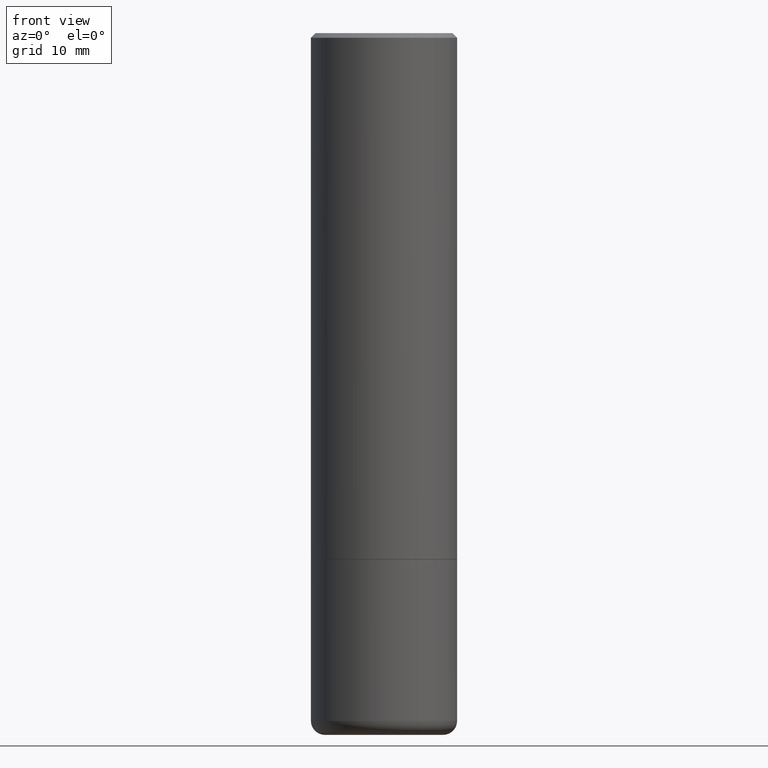
[diagram: clean part render]
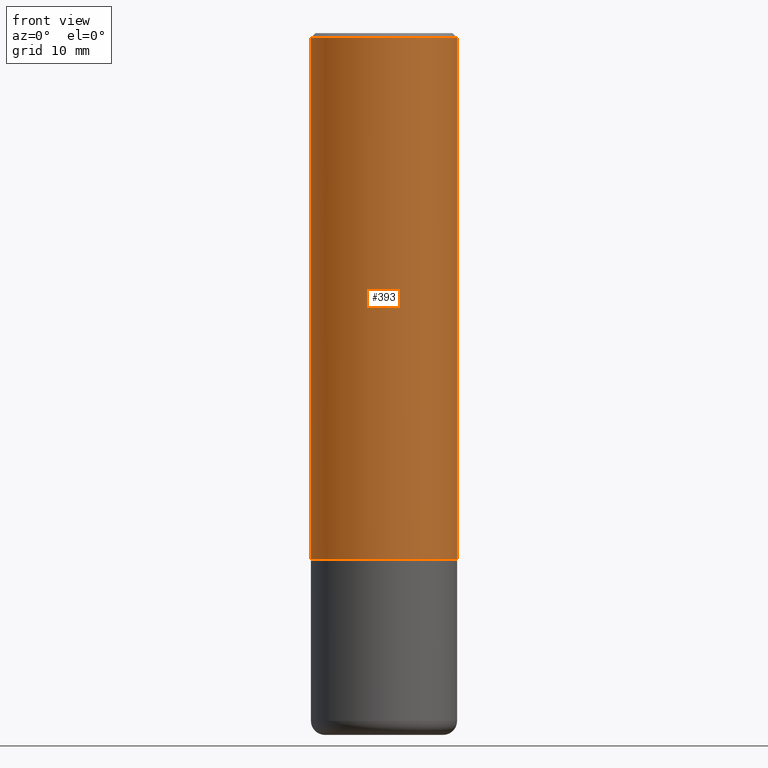
[diagram: same view with one face highlighted and labeled with its STEP entity id]
A machine part, front view. The second image highlights one B-rep face of the part: STEP entity #393.
In plain terms, the highlighted cylindrical surface (partial cylindrical patch) has radius 7.9375 mm, axis along (-0, 0, 1).
Its self-contained STEP definition (entity closure, byte-faithful):
#1 = CARTESIAN_POINT ( 'NONE',  ( 0.000000000000000000, 0.000000000000000000, 0.000000000000000000 ) ) ;
#4 = CARTESIAN_POINT ( 'NONE',  ( 0.3124999999999998335, -2.213735251080465334E-15, -0.02000000000000005246 ) ) ;
#25 = VERTEX_POINT ( 'NONE', #124 ) ;
#44 = LINE ( 'NONE', #240, #428 ) ;
#52 = VERTEX_POINT ( 'NONE', #155 ) ;
#60 = EDGE_CURVE ( 'NONE', #133, #128, #282, .T. ) ;
#66 = ORIENTED_EDGE ( 'NONE', *, *, #60, .F. ) ;
#68 = DIRECTION ( 'NONE',  ( -2.445468806185136597E-29, 3.491481338843145583E-15, 1.000000000000000000 ) ) ;
#69 = CYLINDRICAL_SURFACE ( 'NONE', #401, 0.3124999999999998890 ) ;
#70 = AXIS2_PLACEMENT_3D ( 'NONE', #100, #68, #238 ) ;
#78 = DIRECTION ( 'NONE',  ( 1.000000000000000000, -6.982962677686266711E-15, 4.876176775795935232E-29 ) ) ;
#80 = AXIS2_PLACEMENT_3D ( 'NONE', #195, #231, #297 ) ;
#86 = EDGE_CURVE ( 'NONE', #52, #25, #222, .T. ) ;
#100 = CARTESIAN_POINT ( 'NONE',  ( 5.499859345110372861E-29, -7.852341531058235441E-15, -2.249000000000000110 ) ) ;
#107 = LINE ( 'NONE', #245, #326 ) ;
#109 = EDGE_CURVE ( 'NONE', #52, #133, #44, .T. ) ;
#124 = CARTESIAN_POINT ( 'NONE',  ( 0.3125000000000000000, -1.003451736783519379E-14, -2.249000000000000110 ) ) ;
#128 = VERTEX_POINT ( 'NONE', #4 ) ;
#133 = VERTEX_POINT ( 'NONE', #175 ) ;
#155 = CARTESIAN_POINT ( 'NONE',  ( -0.3125000000000000000, -1.740639529667233725E-15, -2.249000000000000110 ) ) ;
#175 = CARTESIAN_POINT ( 'NONE',  ( -0.3124999999999998335, 2.112346210000093866E-15, -0.02000000000000005246 ) ) ;
#195 = CARTESIAN_POINT ( 'NONE',  ( 4.890937612370285420E-31, -6.982962677686308865E-17, -0.02000000000000005246 ) ) ;
#216 = DIRECTION ( 'NONE',  ( -2.445468806185136877E-29, 3.491481338843145188E-15, 1.000000000000000000 ) ) ;
#222 = CIRCLE ( 'NONE', #70, 0.3125000000000000000 ) ;
#231 = DIRECTION ( 'NONE',  ( -2.445468806185136597E-29, 3.491481338843145583E-15, 1.000000000000000000 ) ) ;
#238 = DIRECTION ( 'NONE',  ( 1.000000000000000000, -6.982962677686265133E-15, 0.000000000000000000 ) ) ;
#240 = CARTESIAN_POINT ( 'NONE',  ( -0.3124999999999998890, 2.220446049250312292E-15, -1.537167215704657391E-29 ) ) ;
#245 = CARTESIAN_POINT ( 'NONE',  ( 0.3124999999999998890, -2.182175836776957558E-15, 1.523805242436229235E-29 ) ) ;
#271 = FACE_OUTER_BOUND ( 'NONE', #399, .T. ) ;
#279 = EDGE_CURVE ( 'NONE', #25, #128, #107, .T. ) ;
#282 = CIRCLE ( 'NONE', #80, 0.3124999999999998335 ) ;
#290 = ORIENTED_EDGE ( 'NONE', *, *, #279, .T. ) ;
#297 = DIRECTION ( 'NONE',  ( 1.000000000000000000, -6.982962677686265133E-15, 0.000000000000000000 ) ) ;
#324 = ORIENTED_EDGE ( 'NONE', *, *, #109, .F. ) ;
#326 = VECTOR ( 'NONE', #362, 39.37007874015748143 ) ;
#334 = ORIENTED_EDGE ( 'NONE', *, *, #86, .T. ) ;
#347 = DIRECTION ( 'NONE',  ( -2.445468806185136597E-29, 3.491481338843145583E-15, 1.000000000000000000 ) ) ;
#362 = DIRECTION ( 'NONE',  ( -2.445468806185136877E-29, 3.491481338843145188E-15, 1.000000000000000000 ) ) ;
#393 = ADVANCED_FACE ( 'NONE', ( #271 ), #69, .T. ) ;
#399 = EDGE_LOOP ( 'NONE', ( #324, #334, #290, #66 ) ) ;
#401 = AXIS2_PLACEMENT_3D ( 'NONE', #1, #347, #78 ) ;
#428 = VECTOR ( 'NONE', #216, 39.37007874015748143 ) ;